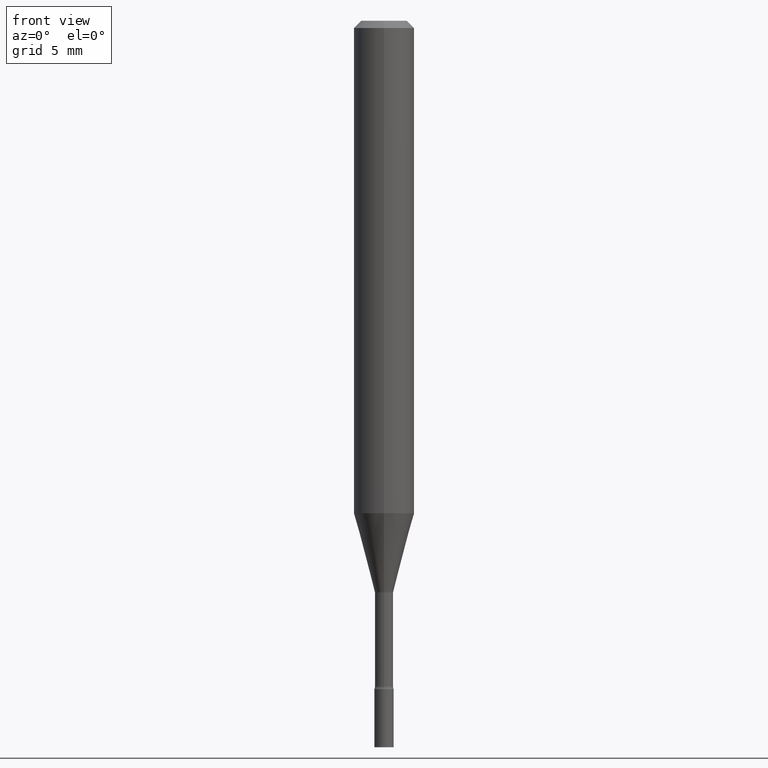
[diagram: clean part render]
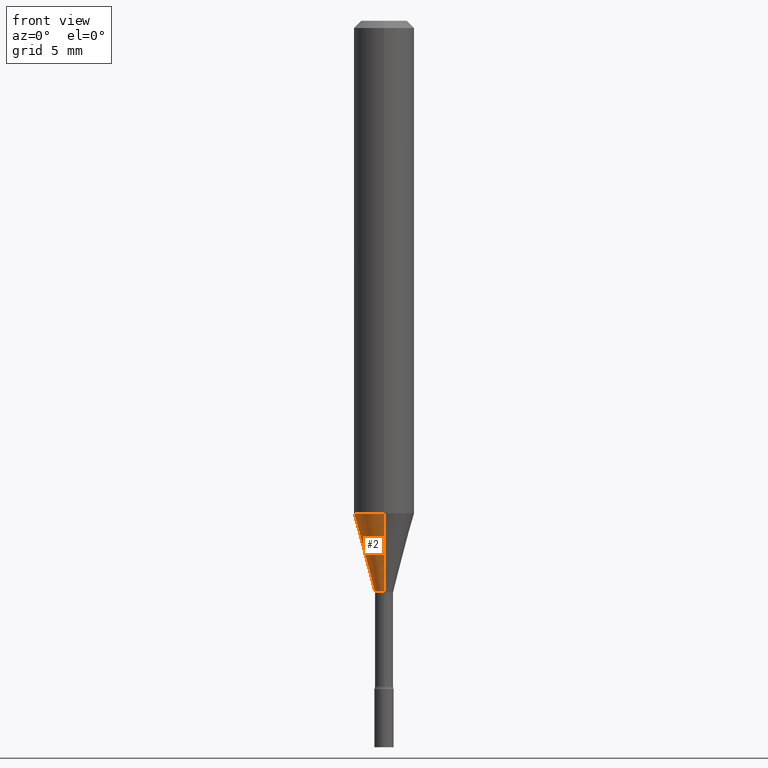
[diagram: same view with one face highlighted and labeled with its STEP entity id]
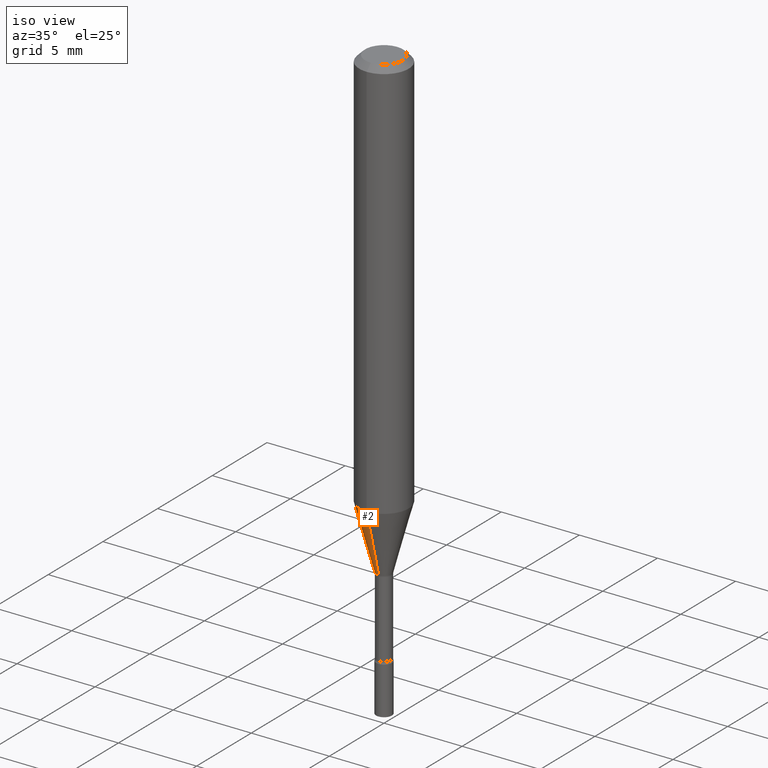
[diagram: same view with one face highlighted and labeled with its STEP entity id]
A machine part, front view. The second image highlights one B-rep face of the part: STEP entity #2.
A second angle (iso view) of the same face is appended — the face is thin or edge-on in the first view.
In plain terms, the highlighted conical surface has half-angle 15 deg.
Its self-contained STEP definition (entity closure, byte-faithful):
#2 = ADVANCED_FACE ( 'NONE', ( #42 ), #229, .T. ) ;
#14 = ORIENTED_EDGE ( 'NONE', *, *, #485, .T. ) ;
#17 = DIRECTION ( 'NONE',  ( -1.807323732225328562E-15, -0.2588190451025179639, 0.9659258262890690894 ) ) ;
#28 = DIRECTION ( 'NONE',  ( -2.445495417718738301E-29, 3.491443229612393590E-15, 1.000000000000000000 ) ) ;
#36 = DIRECTION ( 'NONE',  ( -6.982962677686265922E-15, -1.000000000000000000, 0.000000000000000000 ) ) ;
#39 = AXIS2_PLACEMENT_3D ( 'NONE', #128, #449, #408 ) ;
#42 = FACE_OUTER_BOUND ( 'NONE', #303, .T. ) ;
#47 = CARTESIAN_POINT ( 'NONE',  ( 2.906514588320573934E-16, 0.01931111260565986434, -1.178092501787273205 ) ) ;
#53 = VERTEX_POINT ( 'NONE', #73 ) ;
#72 = CARTESIAN_POINT ( 'NONE',  ( 2.881019814769580720E-29, -4.113243089222302259E-15, -1.178092501787273205 ) ) ;
#73 = CARTESIAN_POINT ( 'NONE',  ( -4.364351673553668696E-16, -0.06250000000000356659, -1.016909379709240335 ) ) ;
#95 = EDGE_CURVE ( 'NONE', #466, #53, #374, .T. ) ;
#117 = CARTESIAN_POINT ( 'NONE',  ( -1.348487785899195480E-16, -0.01931111260566809387, -1.178092501787273205 ) ) ;
#121 = VERTEX_POINT ( 'NONE', #47 ) ;
#128 = CARTESIAN_POINT ( 'NONE',  ( 2.486847228314152234E-29, -3.550481368915166973E-15, -1.016909379709240557 ) ) ;
#181 = ORIENTED_EDGE ( 'NONE', *, *, #95, .F. ) ;
#197 = AXIS2_PLACEMENT_3D ( 'NONE', #72, #28, #234 ) ;
#210 = LINE ( 'NONE', #398, #430 ) ;
#229 = CONICAL_SURFACE ( 'NONE', #197, 0.01931111260566397911, 0.2617993877991500740 ) ;
#234 = DIRECTION ( 'NONE',  ( -6.982962677686265922E-15, -1.000000000000000000, 0.000000000000000000 ) ) ;
#237 = ORIENTED_EDGE ( 'NONE', *, *, #288, .F. ) ;
#288 = EDGE_CURVE ( 'NONE', #121, #466, #503, .T. ) ;
#303 = EDGE_LOOP ( 'NONE', ( #237, #384, #14, #181 ) ) ;
#307 = DIRECTION ( 'NONE',  ( 1.839019923739598738E-15, 0.2588190451025247363, 0.9659258262890673130 ) ) ;
#308 = VERTEX_POINT ( 'NONE', #117 ) ;
#312 = CARTESIAN_POINT ( 'NONE',  ( 1.372137078140271983E-16, 0.01931111260565986434, -1.178092501787273205 ) ) ;
#355 = CIRCLE ( 'NONE', #516, 0.01931111260566397911 ) ;
#374 = CIRCLE ( 'NONE', #39, 0.06250000000000000000 ) ;
#384 = ORIENTED_EDGE ( 'NONE', *, *, #391, .T. ) ;
#391 = EDGE_CURVE ( 'NONE', #121, #308, #355, .T. ) ;
#393 = CARTESIAN_POINT ( 'NONE',  ( 4.440892098500872681E-16, 0.06249999999999643341, -1.016909379709240779 ) ) ;
#398 = CARTESIAN_POINT ( 'NONE',  ( -1.348487785899195480E-16, -0.01931111260566809387, -1.178092501787273205 ) ) ;
#408 = DIRECTION ( 'NONE',  ( -6.982962677686265922E-15, -1.000000000000000000, 4.370956789862821150E-15 ) ) ;
#430 = VECTOR ( 'NONE', #17, 39.37007874015748854 ) ;
#439 = DIRECTION ( 'NONE',  ( -2.445495417718738301E-29, 3.491443229612393590E-15, 1.000000000000000000 ) ) ;
#445 = CARTESIAN_POINT ( 'NONE',  ( 2.881019814769580720E-29, -4.113243089222302259E-15, -1.178092501787273205 ) ) ;
#449 = DIRECTION ( 'NONE',  ( -2.445495417718738301E-29, 3.491443229612393590E-15, 1.000000000000000000 ) ) ;
#466 = VERTEX_POINT ( 'NONE', #393 ) ;
#485 = EDGE_CURVE ( 'NONE', #308, #53, #210, .T. ) ;
#494 = VECTOR ( 'NONE', #307, 39.37007874015748854 ) ;
#503 = LINE ( 'NONE', #312, #494 ) ;
#516 = AXIS2_PLACEMENT_3D ( 'NONE', #445, #439, #36 ) ;